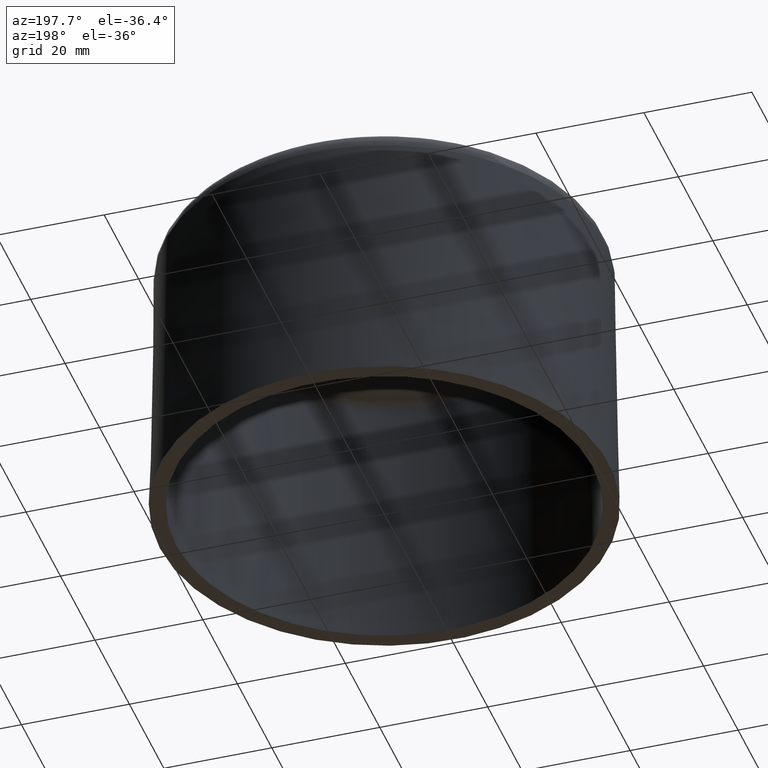
[diagram: clean part render]
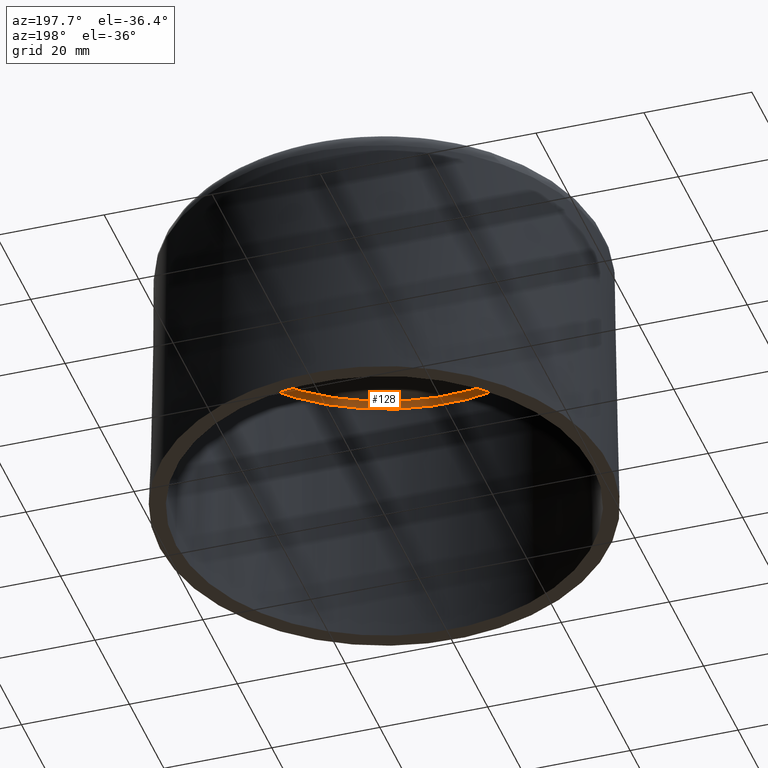
[diagram: same view with one face highlighted and labeled with its STEP entity id]
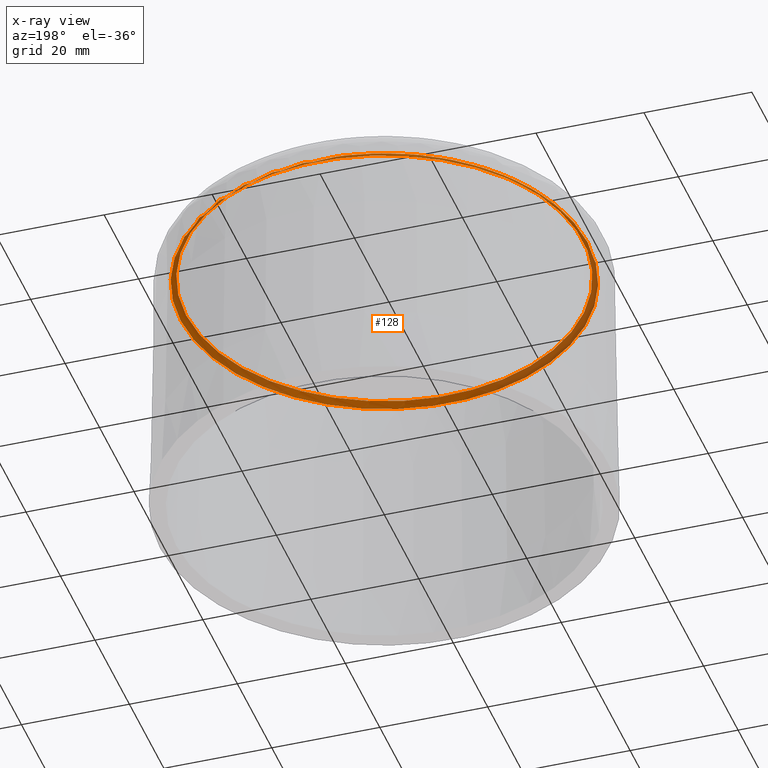
[diagram: x-ray of the same camera — body ghosted, the highlighted face saturated]
A machine part, auxiliary view. The second image highlights one B-rep face of the part: STEP entity #128.
The next image is the same camera in x-ray: the body ghosted, the highlighted face saturated — about 52% of this face is hidden behind the body in this view.
In plain terms, the highlighted toroidal blend (fillet) surface has major radius 36.7309 mm and minor (blend) radius 1 mm.
Its self-contained STEP definition (entity closure, byte-faithful):
#128 = ADVANCED_FACE( '', ( #262, #263 ), #264, .F. );
#262 = FACE_OUTER_BOUND( '', #420, .T. );
#263 = FACE_OUTER_BOUND( '', #421, .T. );
#264 = TOROIDAL_SURFACE( '', #422, 36.7309261136789, 1.00000000000000 );
#420 = EDGE_LOOP( '', ( #944 ) );
#421 = EDGE_LOOP( '', ( #945 ) );
#422 = AXIS2_PLACEMENT_3D( '', #946, #947, #948 );
#944 = ORIENTED_EDGE( '', *, *, #1205, .F. );
#945 = ORIENTED_EDGE( '', *, *, #1206, .T. );
#946 = CARTESIAN_POINT( '', ( -3.00028556686482E-015, 0.000000000000000, 49.0000000000000 ) );
#947 = DIRECTION( '', ( -6.12303176911189E-017, 0.000000000000000, 1.00000000000000 ) );
#948 = DIRECTION( '', ( 1.00000000000000, 0.000000000000000, 6.12303176911189E-017 ) );
#1205 = EDGE_CURVE( '', #1463, #1463, #1464, .T. );
#1206 = EDGE_CURVE( '', #1465, #1465, #1466, .T. );
#1463 = VERTEX_POINT( '', #2094 );
#1464 = CIRCLE( '', #2095, 37.7307738088353 );
#1465 = VERTEX_POINT( '', #2096 );
#1466 = CIRCLE( '', #2097, 36.7309261136789 );
#2094 = CARTESIAN_POINT( '', ( 37.7307738088353, 0.000000000000000, 49.0174524064373 ) );
#2095 = AXIS2_PLACEMENT_3D( '', #2229, #2230, #2231 );
#2096 = CARTESIAN_POINT( '', ( 36.7309261136789, 0.000000000000000, 50.0000000000000 ) );
#2097 = AXIS2_PLACEMENT_3D( '', #2232, #2233, #2234 );
#2229 = CARTESIAN_POINT( '', ( -3.00135418325545E-015, 0.000000000000000, 49.0174524064373 ) );
#2230 = DIRECTION( '', ( -6.12303176911189E-017, 0.000000000000000, 1.00000000000000 ) );
#2231 = DIRECTION( '', ( 1.00000000000000, 0.000000000000000, 6.12303176911189E-017 ) );
#2232 = CARTESIAN_POINT( '', ( -3.06151588455594E-015, 0.000000000000000, 50.0000000000000 ) );
#2233 = DIRECTION( '', ( -6.12303176911189E-017, 0.000000000000000, 1.00000000000000 ) );
#2234 = DIRECTION( '', ( 1.00000000000000, 0.000000000000000, 6.12303176911189E-017 ) );